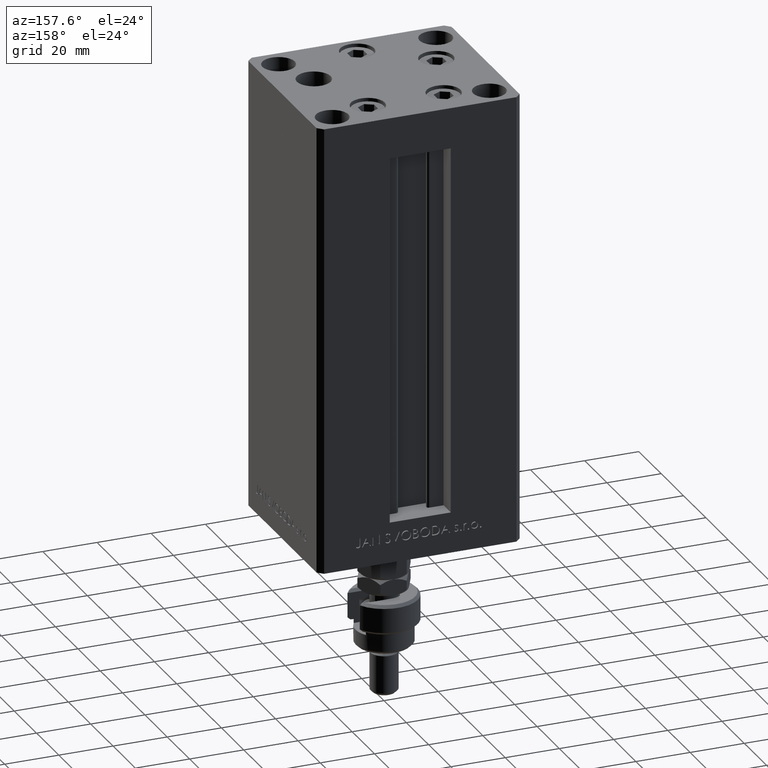
[diagram: clean part render]
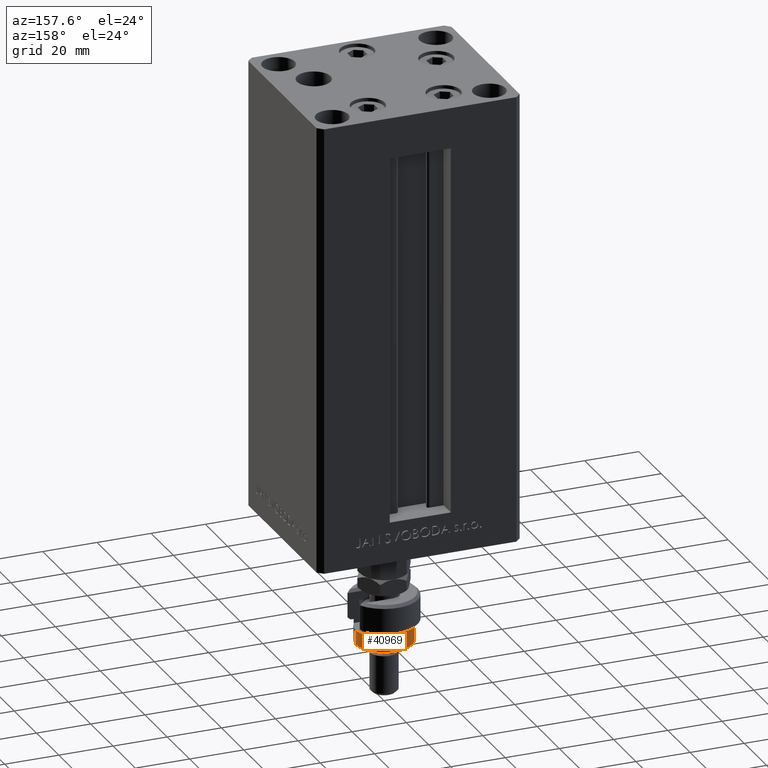
[diagram: same view with one face highlighted and labeled with its STEP entity id]
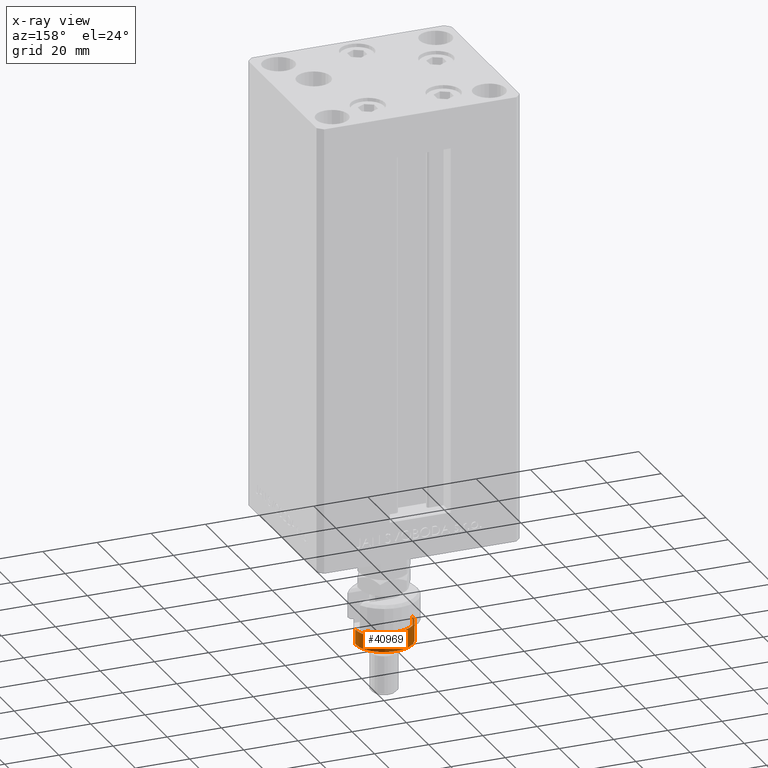
[diagram: x-ray of the same camera — body ghosted, the highlighted face saturated]
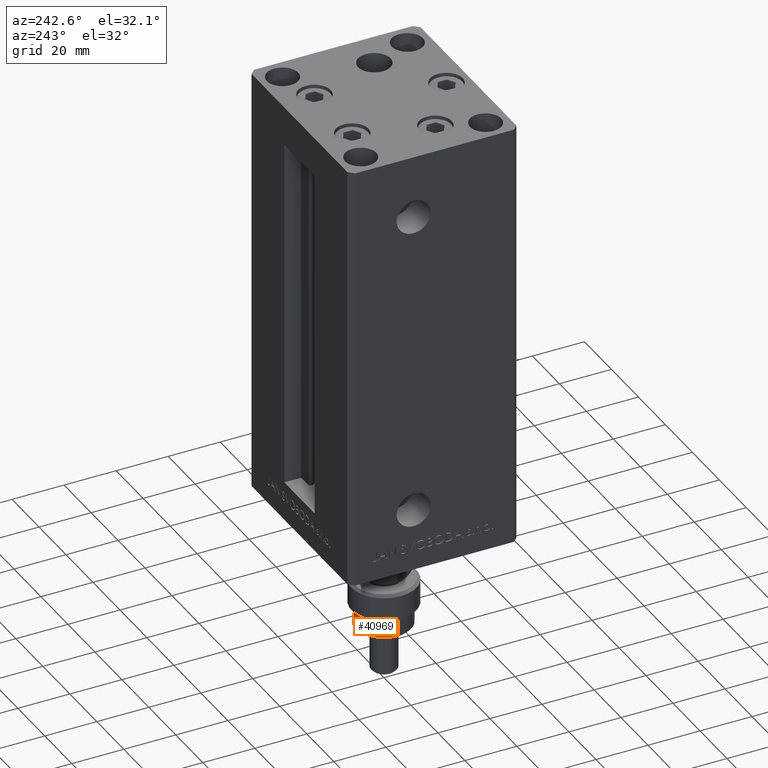
[diagram: same view with one face highlighted and labeled with its STEP entity id]
A machine part, auxiliary view. The second image highlights one B-rep face of the part: STEP entity #40969.
The next image is the same camera in x-ray: the body ghosted, the highlighted face saturated — about 0% of this face is hidden behind the body in this view.
A second angle (auxiliary view) of the same face is appended — the face is thin or edge-on in the first view.
In plain terms, the highlighted cylindrical surface (edge-blend (fillet) strip) has radius 10.5 mm, axis along (0, -0, 1).
Its self-contained STEP definition (entity closure, byte-faithful):
#1951 = DIRECTION ( 'NONE',  ( 0.000000000000000000, 0.000000000000000000, 1.000000000000000000 ) ) ;
#2825 = CYLINDRICAL_SURFACE ( 'NONE', #4154, 10.50000000000000000 ) ;
#2869 = CIRCLE ( 'NONE', #39318, 10.50000000000000000 ) ;
#4154 = AXIS2_PLACEMENT_3D ( 'NONE', #11293, #27505, #35195 ) ;
#4630 = DIRECTION ( 'NONE',  ( 0.000000000000000000, 0.000000000000000000, -1.000000000000000000 ) ) ;
#6589 = VERTEX_POINT ( 'NONE', #38302 ) ;
#7320 = FACE_OUTER_BOUND ( 'NONE', #22773, .T. ) ;
#8768 = DIRECTION ( 'NONE',  ( 0.000000000000000000, 0.000000000000000000, 1.000000000000000000 ) ) ;
#10154 = CARTESIAN_POINT ( 'NONE',  ( -10.50000000000000000, 0.000000000000000000, 17.99999999999999645 ) ) ;
#11293 = CARTESIAN_POINT ( 'NONE',  ( 0.000000000000000000, 0.000000000000000000, 19.00000000000000000 ) ) ;
#11676 = DIRECTION ( 'NONE',  ( -0.000000000000000000, -0.000000000000000000, -1.000000000000000000 ) ) ;
#12591 = CARTESIAN_POINT ( 'NONE',  ( 0.000000000000000000, 0.000000000000000000, 12.50000000000000000 ) ) ;
#13792 = LINE ( 'NONE', #29993, #50690 ) ;
#13993 = CARTESIAN_POINT ( 'NONE',  ( 10.50000000000000000, 1.285879139104720831E-15, 17.99999999999999645 ) ) ;
#14488 = DIRECTION ( 'NONE',  ( -0.000000000000000000, -0.000000000000000000, -1.000000000000000000 ) ) ;
#14671 = AXIS2_PLACEMENT_3D ( 'NONE', #25776, #18065, #41960 ) ;
#15814 = DIRECTION ( 'NONE',  ( -1.000000000000000000, 0.000000000000000000, 0.000000000000000000 ) ) ;
#18065 = DIRECTION ( 'NONE',  ( 0.000000000000000000, 0.000000000000000000, -1.000000000000000000 ) ) ;
#18430 = EDGE_CURVE ( 'NONE', #49204, #21319, #38652, .T. ) ;
#18681 = LINE ( 'NONE', #34861, #49452 ) ;
#20334 = CARTESIAN_POINT ( 'NONE',  ( -10.50000000000000000, 0.000000000000000000, 12.50000000000000000 ) ) ;
#20385 = EDGE_CURVE ( 'NONE', #49204, #25684, #23176, .T. ) ;
#21217 = ORIENTED_EDGE ( 'NONE', *, *, #40291, .F. ) ;
#21319 = VERTEX_POINT ( 'NONE', #20334 ) ;
#21562 = EDGE_CURVE ( 'NONE', #50619, #43848, #18681, .T. ) ;
#22773 = EDGE_LOOP ( 'NONE', ( #50225, #43558, #45140, #46860, #21217, #24993 ) ) ;
#23176 = CIRCLE ( 'NONE', #14671, 10.50000000000000000 ) ;
#24489 = AXIS2_PLACEMENT_3D ( 'NONE', #12591, #4630, #15814 ) ;
#24993 = ORIENTED_EDGE ( 'NONE', *, *, #18430, .F. ) ;
#25339 = EDGE_CURVE ( 'NONE', #6589, #50619, #2869, .T. ) ;
#25684 = VERTEX_POINT ( 'NONE', #13993 ) ;
#25776 = CARTESIAN_POINT ( 'NONE',  ( 0.000000000000000000, 0.000000000000000000, 17.99999999999999645 ) ) ;
#26172 = CIRCLE ( 'NONE', #24489, 10.50000000000000000 ) ;
#27505 = DIRECTION ( 'NONE',  ( -0.000000000000000000, -0.000000000000000000, -1.000000000000000000 ) ) ;
#29902 = CARTESIAN_POINT ( 'NONE',  ( -8.944271909999159220, 5.500000000000000000, 12.50000000000000000 ) ) ;
#29993 = CARTESIAN_POINT ( 'NONE',  ( 10.50000000000000000, 1.285879139104720831E-15, 19.00000000000000000 ) ) ;
#31483 = CARTESIAN_POINT ( 'NONE',  ( -10.50000000000000000, 0.000000000000000000, 19.00000000000000000 ) ) ;
#32427 = CARTESIAN_POINT ( 'NONE',  ( 0.000000000000000000, 0.000000000000000000, 11.00000000000000000 ) ) ;
#33459 = DIRECTION ( 'NONE',  ( 1.000000000000000000, 0.000000000000000000, 0.000000000000000000 ) ) ;
#34861 = CARTESIAN_POINT ( 'NONE',  ( -8.944271909999159220, 5.500000000000000000, 19.00000000000000000 ) ) ;
#35195 = DIRECTION ( 'NONE',  ( -1.000000000000000000, 0.000000000000000000, 0.000000000000000000 ) ) ;
#38302 = CARTESIAN_POINT ( 'NONE',  ( 10.50000000000000000, 1.285879139104720831E-15, 11.00000000000000000 ) ) ;
#38652 = LINE ( 'NONE', #31483, #50208 ) ;
#39318 = AXIS2_PLACEMENT_3D ( 'NONE', #32427, #8768, #33459 ) ;
#39554 = EDGE_CURVE ( 'NONE', #25684, #6589, #13792, .T. ) ;
#40291 = EDGE_CURVE ( 'NONE', #21319, #43848, #26172, .T. ) ;
#40969 = ADVANCED_FACE ( 'NONE', ( #7320 ), #2825, .T. ) ;
#41960 = DIRECTION ( 'NONE',  ( 1.000000000000000000, 0.000000000000000000, 0.000000000000000000 ) ) ;
#43558 = ORIENTED_EDGE ( 'NONE', *, *, #39554, .T. ) ;
#43848 = VERTEX_POINT ( 'NONE', #29902 ) ;
#45140 = ORIENTED_EDGE ( 'NONE', *, *, #25339, .T. ) ;
#46860 = ORIENTED_EDGE ( 'NONE', *, *, #21562, .T. ) ;
#49204 = VERTEX_POINT ( 'NONE', #10154 ) ;
#49452 = VECTOR ( 'NONE', #1951, 1000.000000000000000 ) ;
#50208 = VECTOR ( 'NONE', #14488, 1000.000000000000000 ) ;
#50225 = ORIENTED_EDGE ( 'NONE', *, *, #20385, .T. ) ;
#50619 = VERTEX_POINT ( 'NONE', #50669 ) ;
#50669 = CARTESIAN_POINT ( 'NONE',  ( -8.944271909999159220, 5.500000000000000000, 11.00000000000000000 ) ) ;
#50690 = VECTOR ( 'NONE', #11676, 1000.000000000000000 ) ;